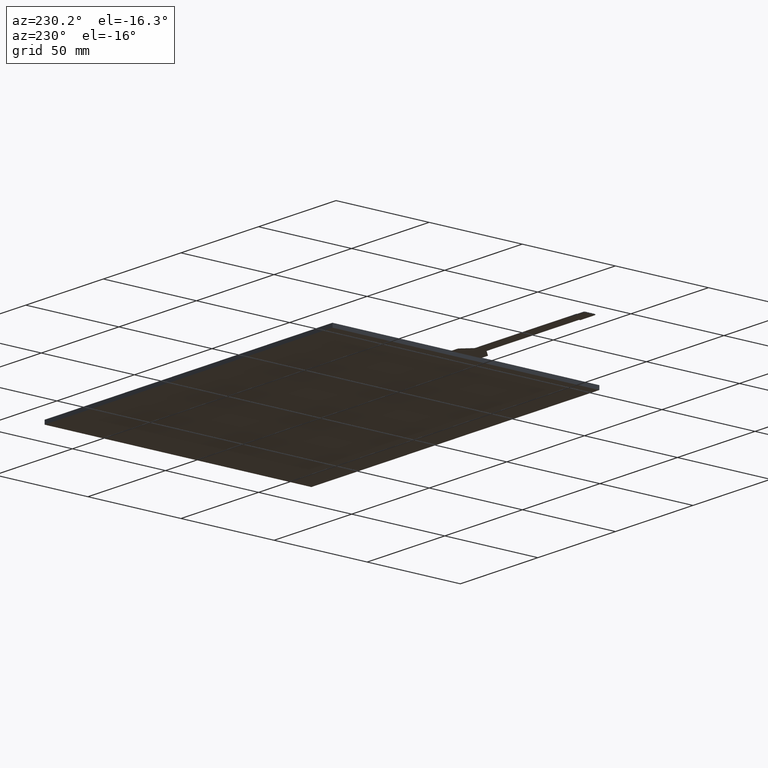
[diagram: clean part render]
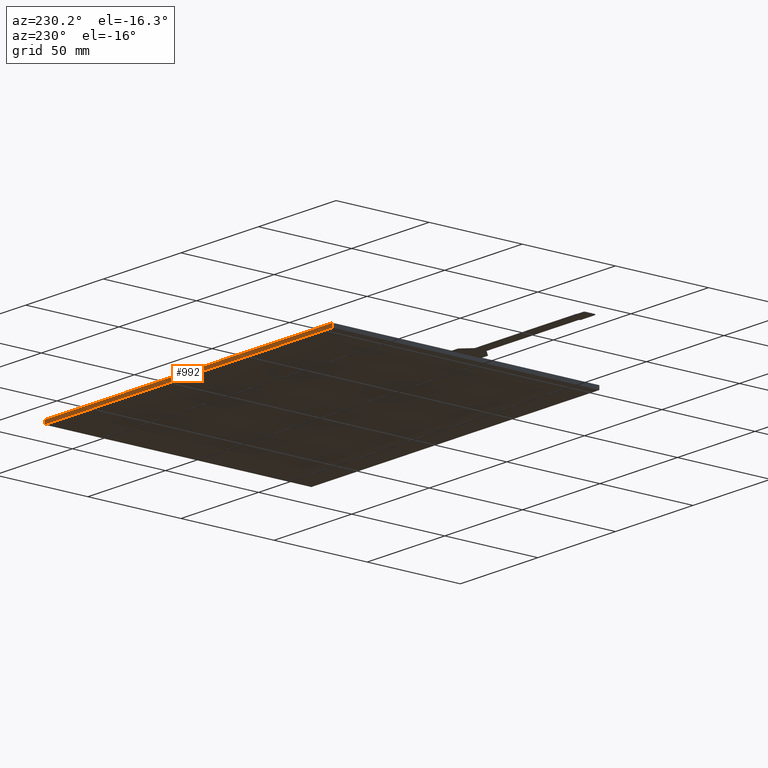
[diagram: same view with one face highlighted and labeled with its STEP entity id]
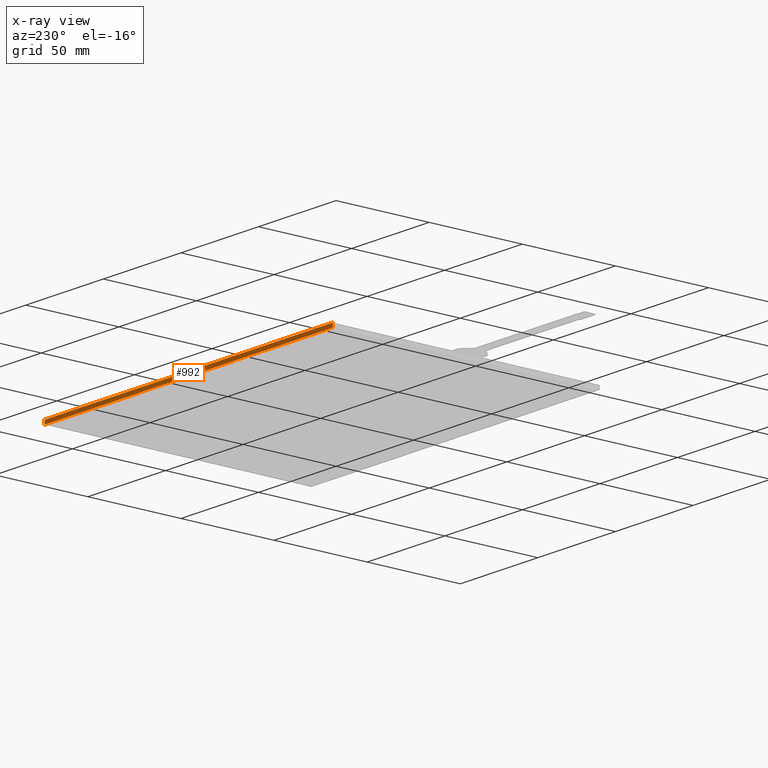
[diagram: x-ray of the same camera — body ghosted, the highlighted face saturated]
A machine part, auxiliary view. The second image highlights one B-rep face of the part: STEP entity #992.
The next image is the same camera in x-ray: the body ghosted, the highlighted face saturated — about 0% of this face is hidden behind the body in this view.
In plain terms, the highlighted planar face has unit normal (0, 1, 0).
Its self-contained STEP definition (entity closure, byte-faithful):
#60=PLANE('',#1075);
#111=FACE_OUTER_BOUND('',#165,.T.);
#165=EDGE_LOOP('',(#926,#927,#928,#929));
#282=LINE('',#1590,#408);
#286=LINE('',#1598,#412);
#292=LINE('',#1609,#418);
#293=LINE('',#1611,#419);
#408=VECTOR('',#1308,10.);
#412=VECTOR('',#1314,10.);
#418=VECTOR('',#1324,10.);
#419=VECTOR('',#1327,10.);
#516=VERTEX_POINT('',#1588);
#517=VERTEX_POINT('',#1589);
#520=VERTEX_POINT('',#1597);
#523=VERTEX_POINT('',#1607);
#650=EDGE_CURVE('',#516,#517,#282,.T.);
#654=EDGE_CURVE('',#517,#520,#286,.T.);
#660=EDGE_CURVE('',#516,#523,#292,.T.);
#661=EDGE_CURVE('',#520,#523,#293,.T.);
#926=ORIENTED_EDGE('',*,*,#650,.F.);
#927=ORIENTED_EDGE('',*,*,#660,.T.);
#928=ORIENTED_EDGE('',*,*,#661,.F.);
#929=ORIENTED_EDGE('',*,*,#654,.F.);
#992=ADVANCED_FACE('',(#111),#60,.T.);
#1075=AXIS2_PLACEMENT_3D('',#1610,#1325,#1326);
#1308=DIRECTION('',(-1.,0.,0.));
#1314=DIRECTION('',(0.,0.,-1.));
#1324=DIRECTION('',(0.,0.,-1.));
#1325=DIRECTION('center_axis',(0.,1.,0.));
#1326=DIRECTION('ref_axis',(1.,0.,0.));
#1327=DIRECTION('',(1.,0.,0.));
#1588=CARTESIAN_POINT('',(91.95,71.65,0.));
#1589=CARTESIAN_POINT('',(-93.65,71.65,0.));
#1590=CARTESIAN_POINT('',(91.95,71.65,0.));
#1597=CARTESIAN_POINT('',(-93.65,71.65,-2.1));
#1598=CARTESIAN_POINT('',(-93.65,71.65,0.));
#1607=CARTESIAN_POINT('',(91.95,71.65,-2.1));
#1609=CARTESIAN_POINT('',(91.95,71.65,0.));
#1610=CARTESIAN_POINT('Origin',(-93.65,71.65,0.));
#1611=CARTESIAN_POINT('',(91.95,71.65,-2.1));